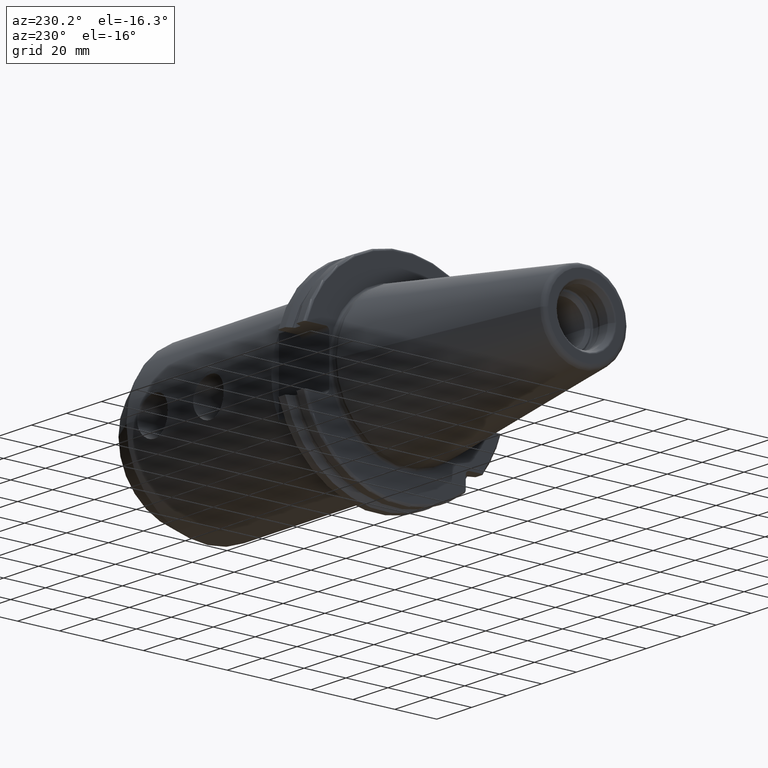
[diagram: clean part render]
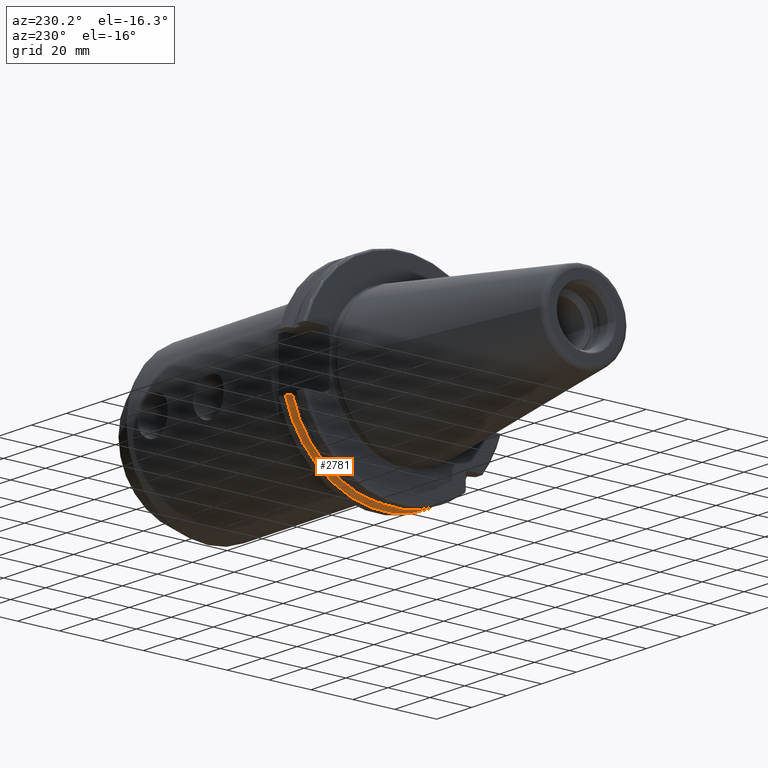
[diagram: same view with one face highlighted and labeled with its STEP entity id]
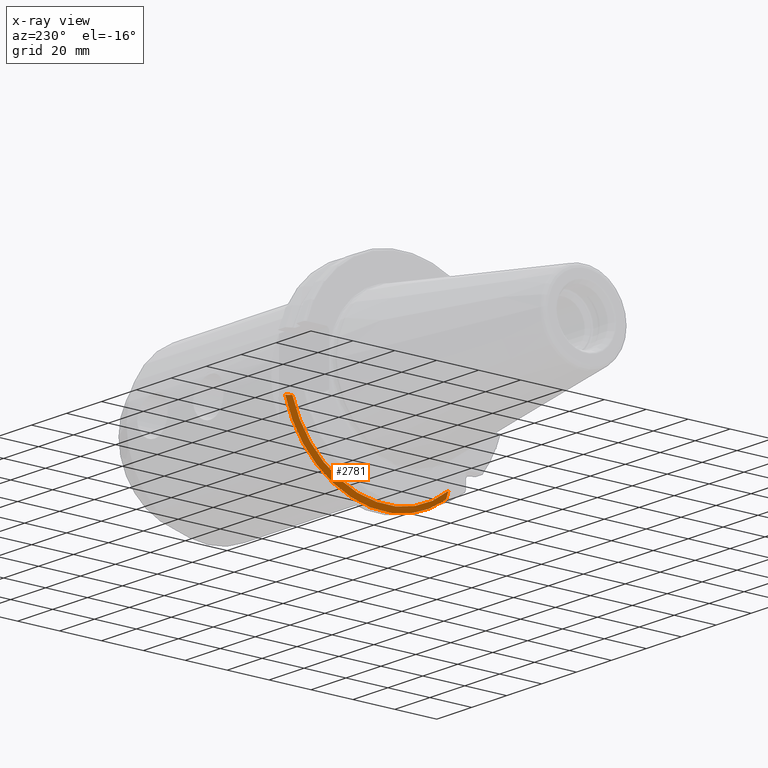
[diagram: x-ray of the same camera — body ghosted, the highlighted face saturated]
A machine part, auxiliary view. The second image highlights one B-rep face of the part: STEP entity #2781.
The next image is the same camera in x-ray: the body ghosted, the highlighted face saturated — about 0% of this face is hidden behind the body in this view.
In plain terms, the highlighted conical surface has half-angle 60 deg.
Its self-contained STEP definition (entity closure, byte-faithful):
#666=CARTESIAN_POINT('',(1.441537838583E1,0.E0,0.E0));
#667=DIRECTION('',(1.E0,0.E0,0.E0));
#668=DIRECTION('',(0.E0,-6.124647345473E-1,-7.904979120376E-1));
#669=AXIS2_PLACEMENT_3D('',#666,#667,#668);
#806=CARTESIAN_POINT('',(1.30875E1,4.460981716077E1,-1.29E1));
#807=CARTESIAN_POINT('',(1.323171622645E1,4.486984125009E1,-1.29E1));
#808=CARTESIAN_POINT('',(1.352236645045E1,4.539353719098E1,-1.29E1));
#809=CARTESIAN_POINT('',(1.396495664446E1,4.618996220278E1,-1.29E1));
#810=CARTESIAN_POINT('',(1.426449561388E1,4.672829507383E1,-1.29E1));
#811=CARTESIAN_POINT('',(1.441537838583E1,4.699929686974E1,-1.29E1));
#813=CARTESIAN_POINT('',(1.30875E1,0.E0,0.E0));
#814=DIRECTION('',(-1.E0,0.E0,0.E0));
#815=DIRECTION('',(0.E0,9.606411165078E-1,-2.777924499957E-1));
#816=AXIS2_PLACEMENT_3D('',#813,#814,#815);
#818=CARTESIAN_POINT('',(1.30875E1,-2.985E1,-3.557278857662E1));
#819=CARTESIAN_POINT('',(1.322720354061E1,-2.985E1,-3.588866659244E1));
#820=CARTESIAN_POINT('',(1.351179500938E1,-2.985E1,-3.652866450573E1));
#821=CARTESIAN_POINT('',(1.395393296765E1,-2.985E1,-3.751242476101E1));
#822=CARTESIAN_POINT('',(1.425975326859E1,-2.985E1,-3.818590359837E1));
#823=CARTESIAN_POINT('',(1.441537838583E1,-2.985E1,-3.852689198793E1));
#1688=CARTESIAN_POINT('',(1.30875E1,4.460981716077E1,-1.29E1));
#1690=VERTEX_POINT('',#1688);
#1708=VERTEX_POINT('',#811);
#1749=CARTESIAN_POINT('',(1.30875E1,-2.985E1,-3.557278857662E1));
#1750=VERTEX_POINT('',#1749);
#1842=VERTEX_POINT('',#823);
#2770=CARTESIAN_POINT('',(1.375143919291E1,0.E0,0.E0));
#2771=DIRECTION('',(1.E0,0.E0,0.E0));
#2772=DIRECTION('',(0.E0,-1.E0,0.E0));
#2773=AXIS2_PLACEMENT_3D('',#2770,#2771,#2772);
#2774=CONICAL_SURFACE('',#2773,4.758752358474E1,6.E1);
#2775=ORIENTED_EDGE('',*,*,#2512,.F.);
#2776=ORIENTED_EDGE('',*,*,#2458,.T.);
#2777=ORIENTED_EDGE('',*,*,#2563,.T.);
#2778=ORIENTED_EDGE('',*,*,#2644,.T.);
#2779=EDGE_LOOP('',(#2775,#2776,#2777,#2778));
#2780=FACE_OUTER_BOUND('',#2779,.F.);
#2781=ADVANCED_FACE('',(#2780),#2774,.T.);
#670=CIRCLE('',#669,4.87375E1);
#812=B_SPLINE_CURVE_WITH_KNOTS('',3,(#806,#807,#808,#809,#810,#811),
.UNSPECIFIED.,.F.,.F.,(4,1,1,4),(0.E0,3.333333333333E-1,6.666666666667E-1,1.E0),
.UNSPECIFIED.);
#817=CIRCLE('',#816,4.643754716948E1);
#824=B_SPLINE_CURVE_WITH_KNOTS('',3,(#818,#819,#820,#821,#822,#823),
.UNSPECIFIED.,.F.,.F.,(4,1,1,4),(0.E0,3.333333333333E-1,6.666666666667E-1,1.E0),
.UNSPECIFIED.);
#2458=EDGE_CURVE('',#1690,#1750,#817,.T.);
#2512=EDGE_CURVE('',#1690,#1708,#812,.T.);
#2563=EDGE_CURVE('',#1750,#1842,#824,.T.);
#2644=EDGE_CURVE('',#1842,#1708,#670,.T.);